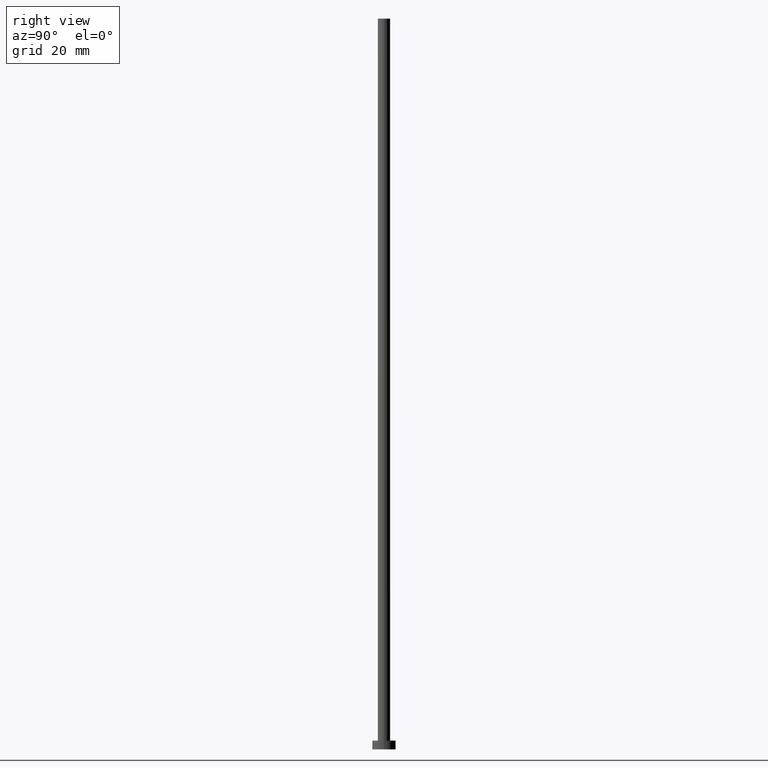
[diagram: clean part render]
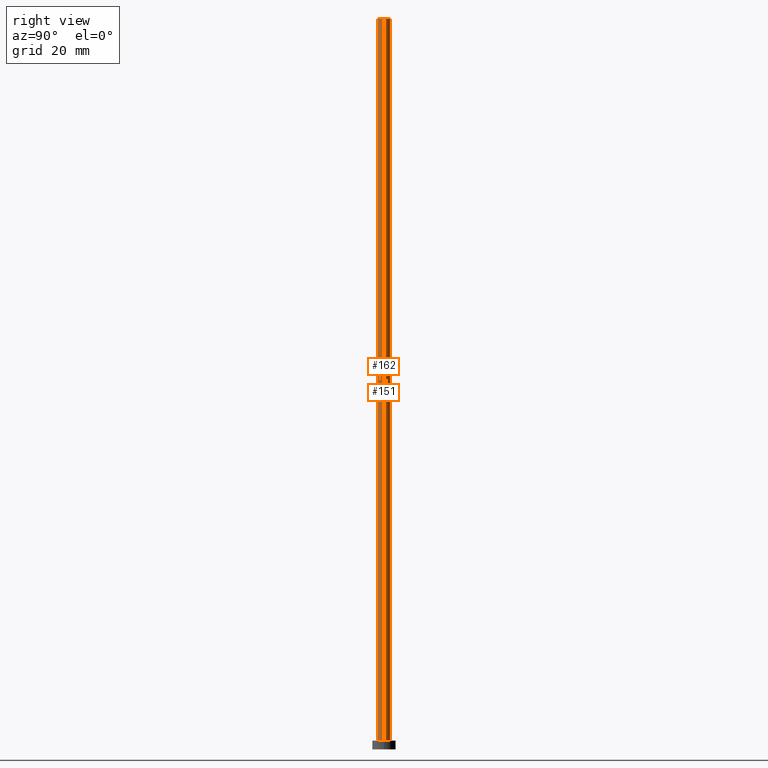
[diagram: same view with one multi-face feature highlighted, each face labeled with its STEP entity id]
A machine part, right view. The highlighted faces form ONE feature: a constant-radius fillet chain: 2 tangent blend faces with common blend radius 2.1 mm. The faces share edges in the B-rep.
Their STEP definitions:
[1] entity #162 (Cylinder):
#9 = AXIS2_PLACEMENT_3D ( 'NONE', #97, #99, #117 ) ;
#13 = CARTESIAN_POINT ( 'NONE',  ( -2.100000000000000089, 0.000000000000000000, 250.0000000000000000 ) ) ;
#25 = CIRCLE ( 'NONE', #254, 2.100000000000000089 ) ;
#29 = DIRECTION ( 'NONE',  ( -1.000000000000000000, 0.000000000000000000, 0.000000000000000000 ) ) ;
#30 = CARTESIAN_POINT ( 'NONE',  ( 2.100000000000000089, 2.571758278209441957E-16, 250.0000000000000000 ) ) ;
#35 = ORIENTED_EDGE ( 'NONE', *, *, #41, .T. ) ;
#37 = EDGE_CURVE ( 'NONE', #59, #78, #88, .T. ) ;
#41 = EDGE_CURVE ( 'NONE', #56, #59, #137, .T. ) ;
#49 = CYLINDRICAL_SURFACE ( 'NONE', #75, 2.100000000000000089 ) ;
#56 = VERTEX_POINT ( 'NONE', #131 ) ;
#59 = VERTEX_POINT ( 'NONE', #240 ) ;
#61 = EDGE_CURVE ( 'NONE', #154, #78, #71, .T. ) ;
#71 = LINE ( 'NONE', #148, #153 ) ;
#75 = AXIS2_PLACEMENT_3D ( 'NONE', #130, #202, #29 ) ;
#78 = VERTEX_POINT ( 'NONE', #152 ) ;
#88 = CIRCLE ( 'NONE', #9, 2.100000000000000089 ) ;
#97 = CARTESIAN_POINT ( 'NONE',  ( 0.000000000000000000, 0.000000000000000000, 3.000000000000000000 ) ) ;
#98 = CARTESIAN_POINT ( 'NONE',  ( 0.000000000000000000, 0.000000000000000000, 250.0000000000000000 ) ) ;
#99 = DIRECTION ( 'NONE',  ( 0.000000000000000000, 0.000000000000000000, 1.000000000000000000 ) ) ;
#117 = DIRECTION ( 'NONE',  ( 1.000000000000000000, 0.000000000000000000, 0.000000000000000000 ) ) ;
#128 = DIRECTION ( 'NONE',  ( -0.000000000000000000, -0.000000000000000000, -1.000000000000000000 ) ) ;
#130 = CARTESIAN_POINT ( 'NONE',  ( 0.000000000000000000, 0.000000000000000000, 250.0000000000000000 ) ) ;
#131 = CARTESIAN_POINT ( 'NONE',  ( -2.100000000000000089, 0.000000000000000000, 250.0000000000000000 ) ) ;
#137 = LINE ( 'NONE', #13, #213 ) ;
#148 = CARTESIAN_POINT ( 'NONE',  ( 2.100000000000000089, 2.571758278209441957E-16, 250.0000000000000000 ) ) ;
#152 = CARTESIAN_POINT ( 'NONE',  ( 2.100000000000000089, 2.571758278209441957E-16, 3.000000000000000000 ) ) ;
#153 = VECTOR ( 'NONE', #128, 1000.000000000000000 ) ;
#154 = VERTEX_POINT ( 'NONE', #30 ) ;
#162 = ADVANCED_FACE ( 'NONE', ( #236 ), #49, .T. ) ;
#165 = ORIENTED_EDGE ( 'NONE', *, *, #37, .T. ) ;
#172 = ORIENTED_EDGE ( 'NONE', *, *, #243, .F. ) ;
#173 = DIRECTION ( 'NONE',  ( -0.000000000000000000, -0.000000000000000000, -1.000000000000000000 ) ) ;
#202 = DIRECTION ( 'NONE',  ( -0.000000000000000000, -0.000000000000000000, -1.000000000000000000 ) ) ;
#203 = EDGE_LOOP ( 'NONE', ( #229, #172, #35, #165 ) ) ;
#206 = DIRECTION ( 'NONE',  ( 1.000000000000000000, 0.000000000000000000, 0.000000000000000000 ) ) ;
#213 = VECTOR ( 'NONE', #173, 1000.000000000000000 ) ;
#229 = ORIENTED_EDGE ( 'NONE', *, *, #61, .F. ) ;
#236 = FACE_OUTER_BOUND ( 'NONE', #203, .T. ) ;
#240 = CARTESIAN_POINT ( 'NONE',  ( -2.100000000000000089, 0.000000000000000000, 3.000000000000000000 ) ) ;
#241 = DIRECTION ( 'NONE',  ( 0.000000000000000000, 0.000000000000000000, 1.000000000000000000 ) ) ;
#243 = EDGE_CURVE ( 'NONE', #56, #154, #25, .T. ) ;
#254 = AXIS2_PLACEMENT_3D ( 'NONE', #98, #241, #206 ) ;
[2] entity #151 (Cylinder):
#5 = CYLINDRICAL_SURFACE ( 'NONE', #156, 2.100000000000000089 ) ;
#13 = CARTESIAN_POINT ( 'NONE',  ( -2.100000000000000089, 0.000000000000000000, 250.0000000000000000 ) ) ;
#21 = CARTESIAN_POINT ( 'NONE',  ( 0.000000000000000000, 0.000000000000000000, 250.0000000000000000 ) ) ;
#30 = CARTESIAN_POINT ( 'NONE',  ( 2.100000000000000089, 2.571758278209441957E-16, 250.0000000000000000 ) ) ;
#41 = EDGE_CURVE ( 'NONE', #56, #59, #137, .T. ) ;
#46 = DIRECTION ( 'NONE',  ( 1.000000000000000000, 0.000000000000000000, 0.000000000000000000 ) ) ;
#50 = EDGE_CURVE ( 'NONE', #78, #59, #66, .T. ) ;
#56 = VERTEX_POINT ( 'NONE', #131 ) ;
#59 = VERTEX_POINT ( 'NONE', #240 ) ;
#61 = EDGE_CURVE ( 'NONE', #154, #78, #71, .T. ) ;
#66 = CIRCLE ( 'NONE', #113, 2.100000000000000089 ) ;
#71 = LINE ( 'NONE', #148, #153 ) ;
#74 = DIRECTION ( 'NONE',  ( 1.000000000000000000, 0.000000000000000000, 0.000000000000000000 ) ) ;
#78 = VERTEX_POINT ( 'NONE', #152 ) ;
#83 = AXIS2_PLACEMENT_3D ( 'NONE', #21, #237, #74 ) ;
#91 = CARTESIAN_POINT ( 'NONE',  ( 0.000000000000000000, 0.000000000000000000, 250.0000000000000000 ) ) ;
#96 = CIRCLE ( 'NONE', #83, 2.100000000000000089 ) ;
#104 = FACE_OUTER_BOUND ( 'NONE', #249, .T. ) ;
#112 = EDGE_CURVE ( 'NONE', #154, #56, #96, .T. ) ;
#113 = AXIS2_PLACEMENT_3D ( 'NONE', #146, #220, #46 ) ;
#128 = DIRECTION ( 'NONE',  ( -0.000000000000000000, -0.000000000000000000, -1.000000000000000000 ) ) ;
#131 = CARTESIAN_POINT ( 'NONE',  ( -2.100000000000000089, 0.000000000000000000, 250.0000000000000000 ) ) ;
#137 = LINE ( 'NONE', #13, #213 ) ;
#146 = CARTESIAN_POINT ( 'NONE',  ( 0.000000000000000000, 0.000000000000000000, 3.000000000000000000 ) ) ;
#148 = CARTESIAN_POINT ( 'NONE',  ( 2.100000000000000089, 2.571758278209441957E-16, 250.0000000000000000 ) ) ;
#151 = ADVANCED_FACE ( 'NONE', ( #104 ), #5, .T. ) ;
#152 = CARTESIAN_POINT ( 'NONE',  ( 2.100000000000000089, 2.571758278209441957E-16, 3.000000000000000000 ) ) ;
#153 = VECTOR ( 'NONE', #128, 1000.000000000000000 ) ;
#154 = VERTEX_POINT ( 'NONE', #30 ) ;
#156 = AXIS2_PLACEMENT_3D ( 'NONE', #91, #223, #221 ) ;
#173 = DIRECTION ( 'NONE',  ( -0.000000000000000000, -0.000000000000000000, -1.000000000000000000 ) ) ;
#193 = ORIENTED_EDGE ( 'NONE', *, *, #41, .F. ) ;
#210 = ORIENTED_EDGE ( 'NONE', *, *, #112, .F. ) ;
#213 = VECTOR ( 'NONE', #173, 1000.000000000000000 ) ;
#214 = ORIENTED_EDGE ( 'NONE', *, *, #50, .T. ) ;
#220 = DIRECTION ( 'NONE',  ( 0.000000000000000000, 0.000000000000000000, 1.000000000000000000 ) ) ;
#221 = DIRECTION ( 'NONE',  ( -1.000000000000000000, 0.000000000000000000, 0.000000000000000000 ) ) ;
#223 = DIRECTION ( 'NONE',  ( -0.000000000000000000, -0.000000000000000000, -1.000000000000000000 ) ) ;
#237 = DIRECTION ( 'NONE',  ( 0.000000000000000000, 0.000000000000000000, 1.000000000000000000 ) ) ;
#240 = CARTESIAN_POINT ( 'NONE',  ( -2.100000000000000089, 0.000000000000000000, 3.000000000000000000 ) ) ;
#247 = ORIENTED_EDGE ( 'NONE', *, *, #61, .T. ) ;
#249 = EDGE_LOOP ( 'NONE', ( #210, #247, #214, #193 ) ) ;